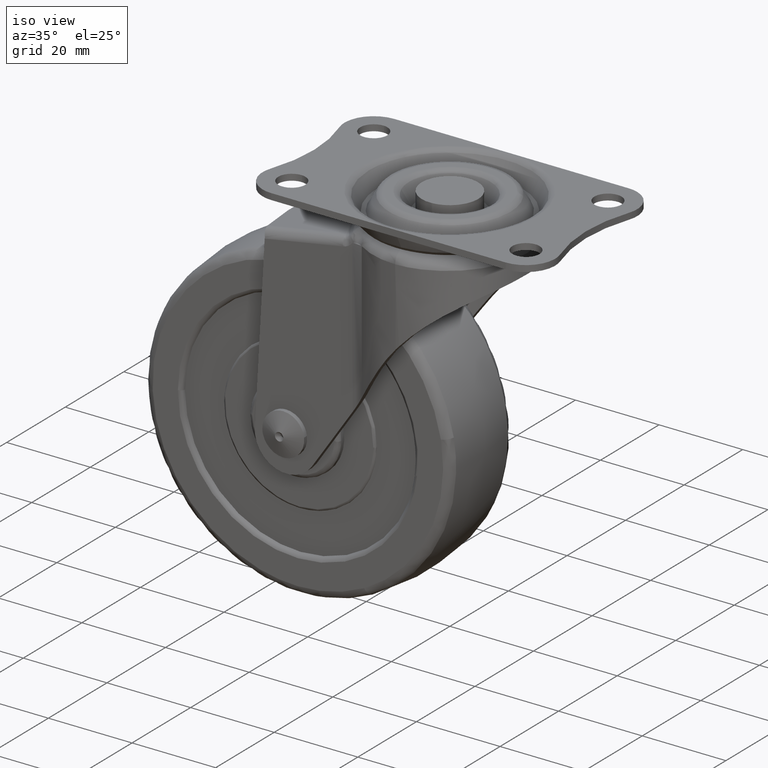
[diagram: clean part render]
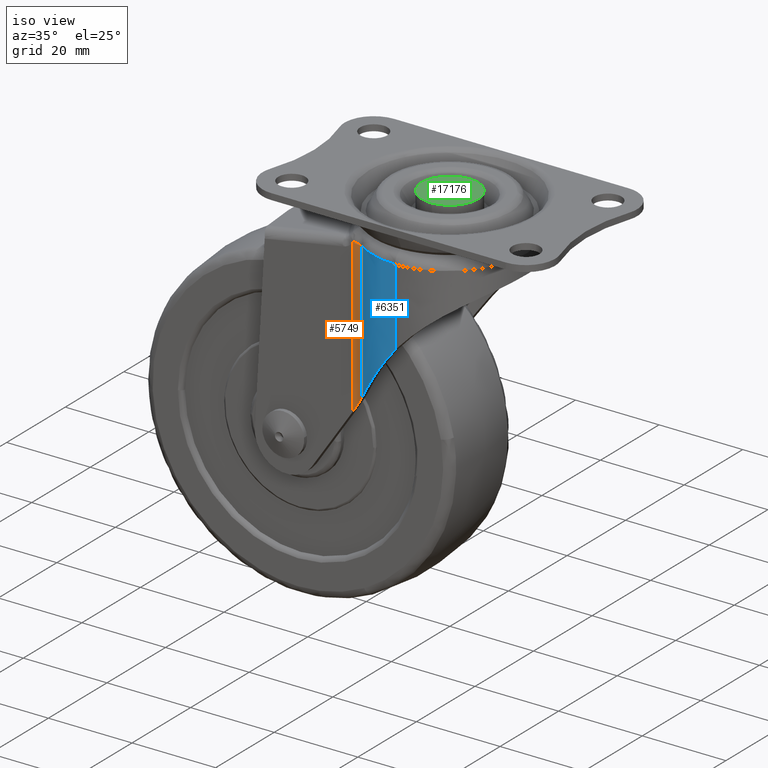
[diagram: same view with three faces highlighted in distinct colors, each labeled with its STEP entity id]
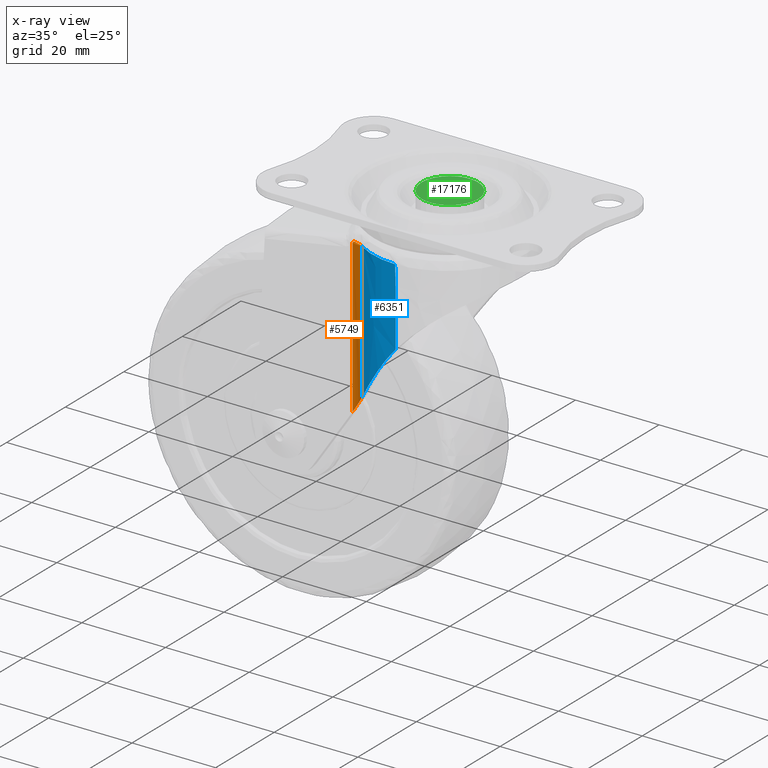
[diagram: x-ray of the same camera — body ghosted, the three highlighted faces saturated]
A machine part, iso view with three faces highlighted in distinct colors.
The next image is the same camera in x-ray (body ghosted, the three faces saturated) — at least one of them is partly hidden behind the body in this view.
Their STEP definitions:

[orange] entity #5749 — the highlighted face is a freeform B-spline surface patch.
#3965=CARTESIAN_POINT('',(-13.114845407450700,-14.500014999999960,-7.772795096158631));
#3966=VERTEX_POINT('',#3965);
#4020=CARTESIAN_POINT('',(-12.856621413632819,-14.506687415210759,-7.399998799999970));
#4021=VERTEX_POINT('',#4020);
#4045=CARTESIAN_POINT('',(-12.856621413632819,-14.506687415210759,-7.399998799999970));
#4046=CARTESIAN_POINT('',(-12.943936492150140,-14.502172019833150,-7.523364027690525));
#4047=CARTESIAN_POINT('',(-13.029958534654460,-14.500014999999919,-7.647667110686728));
#4048=CARTESIAN_POINT('',(-13.114845407450719,-14.500014999999919,-7.772795096158610));
#4049=QUASI_UNIFORM_CURVE('',3,(#4045,#4046,#4047,#4048),.UNSPECIFIED.,.F.,.U.);
#4050=EDGE_CURVE('',#4021,#3966,#4049,.T.);
#4654=CARTESIAN_POINT('',(-10.324452148758301,-15.351074718211850,-7.399998799999970));
#4655=VERTEX_POINT('',#4654);
#4656=CARTESIAN_POINT('',(-10.324452148758301,-15.351074718211841,-7.399998799999970));
#4657=CARTESIAN_POINT('',(-11.473600173807016,-14.578208712786072,-7.399998799999970));
#4658=CARTESIAN_POINT('',(-12.856621413632819,-14.506687415210751,-7.399998799999970));
#4666=(BOUNDED_CURVE()B_SPLINE_CURVE(2,(#4656,#4657,#4658),.UNSPECIFIED.,.F.,.U.)CURVE()GEOMETRIC_REPRESENTATION_ITEM()QUASI_UNIFORM_CURVE()RATIONAL_B_SPLINE_CURVE((1.0,0.963717432116673,1.0))REPRESENTATION_ITEM(''));
#4667=EDGE_CURVE('',#4655,#4021,#4666,.T.);
#5704=CARTESIAN_POINT('',(-13.252444837934910,-14.501908718944060,-45.218719079885069));
#5705=CARTESIAN_POINT('',(-13.252444837934910,-14.501908718944060,-6.454530793002839));
#5706=CARTESIAN_POINT('',(-11.571720338933032,-14.455637847366139,-45.218719079885062));
#5707=CARTESIAN_POINT('',(-11.571720338933032,-14.455637847366139,-6.454530793002838));
#5708=CARTESIAN_POINT('',(-10.204531691264046,-15.434295620434286,-45.218719079885069));
#5709=CARTESIAN_POINT('',(-10.204531691264046,-15.434295620434286,-6.454530793002840));
#5717=(BOUNDED_SURFACE()B_SPLINE_SURFACE(1,2,((#5704,#5706,#5708),(#5705,#5707,#5709)),.UNSPECIFIED.,.F.,.F.,.U.)B_SPLINE_SURFACE_WITH_KNOTS((2,2),(3,3),(0.0,38.764188286882231),(0.0,3.272668256991335),.UNSPECIFIED.)GEOMETRIC_REPRESENTATION_ITEM()RATIONAL_B_SPLINE_SURFACE(((1.0,0.944025096349124,0.991957538020021),(1.0,0.944025096349124,0.991957538020021)))REPRESENTATION_ITEM('')SURFACE());
#5718=ORIENTED_EDGE('',*,*,#4667,.T.);
#5719=ORIENTED_EDGE('',*,*,#4050,.T.);
#5720=CARTESIAN_POINT('',(-13.114845407450661,-14.500014999999960,-44.296311268180553));
#5721=VERTEX_POINT('',#5720);
#5722=CARTESIAN_POINT('',(-13.114845407450661,-14.500014999999960,-44.296311268180553));
#5723=CARTESIAN_POINT('',(-13.114845407450700,-14.500014999999960,-7.772795096158631));
#5724=QUASI_UNIFORM_CURVE('',1,(#5722,#5723),.UNSPECIFIED.,.F.,.U.);
#5725=EDGE_CURVE('',#5721,#3966,#5724,.T.);
#5726=ORIENTED_EDGE('',*,*,#5725,.F.);
#5727=CARTESIAN_POINT('',(-10.324452148758320,-15.351074718211850,-40.169434449829957));
#5728=VERTEX_POINT('',#5727);
#5729=CARTESIAN_POINT('',(-10.324452148758279,-15.351074718211850,-40.169434449829950));
#5730=CARTESIAN_POINT('',(-11.589863591166482,-14.500015093693394,-42.040925907560016));
#5731=CARTESIAN_POINT('',(-13.114845407450661,-14.500014999999960,-44.296311268180553));
#5739=(BOUNDED_CURVE()B_SPLINE_CURVE(2,(#5729,#5730,#5731),.UNSPECIFIED.,.F.,.U.)CURVE()GEOMETRIC_REPRESENTATION_ITEM()QUASI_UNIFORM_CURVE()RATIONAL_B_SPLINE_CURVE((1.0,0.956500938485019,1.0))REPRESENTATION_ITEM(''));
#5740=EDGE_CURVE('',#5728,#5721,#5739,.T.);
#5741=ORIENTED_EDGE('',*,*,#5740,.F.);
#5742=CARTESIAN_POINT('',(-10.324452148758301,-15.351074718211850,-7.399998799999970));
#5743=CARTESIAN_POINT('',(-10.324452148758320,-15.351074718211850,-40.169434449829957));
#5744=QUASI_UNIFORM_CURVE('',1,(#5742,#5743),.UNSPECIFIED.,.F.,.U.);
#5745=EDGE_CURVE('',#4655,#5728,#5744,.T.);
#5746=ORIENTED_EDGE('',*,*,#5745,.F.);
#5747=EDGE_LOOP('',(#5718,#5719,#5726,#5741,#5746));
#5748=FACE_OUTER_BOUND('',#5747,.T.);
#5749=ADVANCED_FACE('',(#5748),#5717,.F.);

[blue] entity #6351 — the highlighted face is a freeform B-spline surface patch.
#4654=CARTESIAN_POINT('',(-10.324452148758301,-15.351074718211850,-7.399998799999970));
#4655=VERTEX_POINT('',#4654);
#4754=CARTESIAN_POINT('',(-0.143163841083398,-18.499436752585250,-7.399998800000080));
#4755=VERTEX_POINT('',#4754);
#4756=CARTESIAN_POINT('',(-0.143163841083398,-18.499436752585250,-7.399998800000080));
#4757=CARTESIAN_POINT('',(-5.707278229099540,-18.456379106197605,-7.399998800000024));
#4758=CARTESIAN_POINT('',(-10.324452148758301,-15.351074718211850,-7.399998799999970));
#4766=(BOUNDED_CURVE()B_SPLINE_CURVE(2,(#4756,#4757,#4758),.UNSPECIFIED.,.F.,.U.)CURVE()GEOMETRIC_REPRESENTATION_ITEM()QUASI_UNIFORM_CURVE()RATIONAL_B_SPLINE_CURVE((1.0,0.957622564361793,1.0))REPRESENTATION_ITEM(''));
#4767=EDGE_CURVE('',#4755,#4655,#4766,.T.);
#5727=CARTESIAN_POINT('',(-10.324452148758320,-15.351074718211850,-40.169434449829957));
#5728=VERTEX_POINT('',#5727);
#5742=CARTESIAN_POINT('',(-10.324452148758301,-15.351074718211850,-7.399998799999970));
#5743=CARTESIAN_POINT('',(-10.324452148758320,-15.351074718211850,-40.169434449829957));
#5744=QUASI_UNIFORM_CURVE('',1,(#5742,#5743),.UNSPECIFIED.,.F.,.U.);
#5745=EDGE_CURVE('',#4655,#5728,#5744,.T.);
#5817=CARTESIAN_POINT('',(1.005923E-012,-18.499986619467698,-12.156786014966260));
#5818=VERTEX_POINT('',#5817);
#5819=CARTESIAN_POINT('',(1.005923E-012,-18.499986619467698,-12.156786014966260));
#5820=CARTESIAN_POINT('',(-0.071582992255914,-18.499988661767244,-9.778356798499587));
#5821=CARTESIAN_POINT('',(-0.143163841083398,-18.499436752585250,-7.399998800000080));
#5829=(BOUNDED_CURVE()B_SPLINE_CURVE(2,(#5819,#5820,#5821),.UNSPECIFIED.,.F.,.U.)CURVE()GEOMETRIC_REPRESENTATION_ITEM()QUASI_UNIFORM_CURVE()RATIONAL_B_SPLINE_CURVE((1.0,0.999992514114235,1.0))REPRESENTATION_ITEM(''));
#5830=EDGE_CURVE('',#5818,#4755,#5829,.T.);
#6165=CARTESIAN_POINT('',(9.922618E-013,-18.499994788543699,-25.766931479263551));
#6166=VERTEX_POINT('',#6165);
#6180=CARTESIAN_POINT('',(-4.681181119284840,-17.897942633291049,-31.823268790685901));
#6181=VERTEX_POINT('',#6180);
#6182=CARTESIAN_POINT('',(-4.681181119284840,-17.897942633291049,-31.823268790685901));
#6183=CARTESIAN_POINT('',(-3.969290812042974,-18.084136517892521,-30.769616840080261));
#6184=CARTESIAN_POINT('',(-3.223789831007494,-18.233922761845360,-29.738324666694020));
#6185=CARTESIAN_POINT('',(-1.664108946531599,-18.441786832449999,-27.719708350576319));
#6186=CARTESIAN_POINT('',(-0.849940992225231,-18.499994788543699,-26.732387907878220));
#6187=CARTESIAN_POINT('',(9.989211E-013,-18.499994788543699,-25.766931479263551));
#6188=B_SPLINE_CURVE_WITH_KNOTS('',3,(#6182,#6183,#6184,#6185,#6186,#6187),.UNSPECIFIED.,.F.,.U.,(4,2,4),(0.0,0.500000000000000,1.0),.UNSPECIFIED.);
#6189=EDGE_CURVE('',#6181,#6166,#6188,.T.);
#6313=CARTESIAN_POINT('',(0.484273407276650,-18.493655302377341,-40.988670341075711));
#6314=CARTESIAN_POINT('',(0.484273407276650,-18.493655302377341,-6.560282011473078));
#6315=CARTESIAN_POINT('',(-5.720051051796170,-18.656121256052419,-40.988670341075711));
#6316=CARTESIAN_POINT('',(-5.720051051796170,-18.656121256052419,-6.560282011473078));
#6317=CARTESIAN_POINT('',(-10.767053929602486,-15.043947515634120,-40.988670341075711));
#6318=CARTESIAN_POINT('',(-10.767053929602486,-15.043947515634120,-6.560282011473078));
#6326=(BOUNDED_SURFACE()B_SPLINE_SURFACE(1,2,((#6313,#6315,#6317),(#6314,#6316,#6318)),.UNSPECIFIED.,.F.,.F.,.U.)B_SPLINE_SURFACE_WITH_KNOTS((2,2),(3,3),(0.0,34.428388329602633),(0.0,12.082003652498919),.UNSPECIFIED.)GEOMETRIC_REPRESENTATION_ITEM()RATIONAL_B_SPLINE_SURFACE(((1.0,0.946843488068517,0.997414615118752),(1.0,0.946843488068517,0.997414615118752)))REPRESENTATION_ITEM('')SURFACE());
#6327=ORIENTED_EDGE('',*,*,#5830,.T.);
#6328=ORIENTED_EDGE('',*,*,#4767,.T.);
#6329=ORIENTED_EDGE('',*,*,#5745,.T.);
#6330=CARTESIAN_POINT('',(-10.324452148758320,-15.351074718211850,-40.169434449829950));
#6331=CARTESIAN_POINT('',(-7.718953336185503,-17.103417684932214,-36.316008909773160));
#6332=CARTESIAN_POINT('',(-4.681181119284840,-17.897942633291049,-31.823268790685901));
#6340=(BOUNDED_CURVE()B_SPLINE_CURVE(2,(#6330,#6331,#6332),.UNSPECIFIED.,.F.,.U.)CURVE()GEOMETRIC_REPRESENTATION_ITEM()QUASI_UNIFORM_CURVE()RATIONAL_B_SPLINE_CURVE((1.0,0.985900208722441,1.0))REPRESENTATION_ITEM(''));
#6341=EDGE_CURVE('',#5728,#6181,#6340,.T.);
#6342=ORIENTED_EDGE('',*,*,#6341,.T.);
#6343=ORIENTED_EDGE('',*,*,#6189,.T.);
#6344=CARTESIAN_POINT('',(9.922618E-013,-18.499994788543699,-25.766931479263551));
#6345=CARTESIAN_POINT('',(1.005923E-012,-18.499986619467698,-12.156786014966260));
#6346=QUASI_UNIFORM_CURVE('',1,(#6344,#6345),.UNSPECIFIED.,.F.,.U.);
#6347=EDGE_CURVE('',#6166,#5818,#6346,.T.);
#6348=ORIENTED_EDGE('',*,*,#6347,.T.);
#6349=EDGE_LOOP('',(#6327,#6328,#6329,#6342,#6343,#6348));
#6350=FACE_OUTER_BOUND('',#6349,.T.);
#6351=ADVANCED_FACE('',(#6350),#6326,.T.);

[green] entity #17176 — the highlighted face is a freeform B-spline surface patch.
#16321=CARTESIAN_POINT('',(-0.796719494586398,6.702815680503946,1.499999999999786));
#16322=VERTEX_POINT('',#16321);
#16323=CARTESIAN_POINT('',(6.750000000000000,-1.421085E-014,1.500000000000000));
#16324=VERTEX_POINT('',#16323);
#16325=CARTESIAN_POINT('',(-0.796719494586398,6.702815680503946,1.499999999999786));
#16326=CARTESIAN_POINT('',(-0.399756951717988,6.749999999999986,1.500000000000000));
#16327=CARTESIAN_POINT('',(0.0,6.749999999999986,1.500000000000000));
#16328=CARTESIAN_POINT('',(6.750000000000000,6.749999999999986,1.500000000000000));
#16329=CARTESIAN_POINT('',(6.750000000000000,-1.421085E-014,1.500000000000000));
#16337=(BOUNDED_CURVE()B_SPLINE_CURVE(2,(#16325,#16326,#16327,#16328,#16329),.UNSPECIFIED.,.F.,.U.)B_SPLINE_CURVE_WITH_KNOTS((3,2,3),(0.229562765726850,0.250000000000000,0.500000000000000),.UNSPECIFIED.)CURVE()GEOMETRIC_REPRESENTATION_ITEM()RATIONAL_B_SPLINE_CURVE((0.956027326934607,0.976056290680370,1.0,0.707106781186548,1.0))REPRESENTATION_ITEM(''));
#16338=EDGE_CURVE('',#16322,#16324,#16337,.T.);
#16340=CARTESIAN_POINT('',(0.412077641956885,-6.737409889341707,1.500000000000000));
#16341=VERTEX_POINT('',#16340);
#16342=CARTESIAN_POINT('',(6.750000000000000,-1.421085E-014,1.500000000000000));
#16343=CARTESIAN_POINT('',(6.750000000000001,-6.349765951431015,1.500000000000000));
#16344=CARTESIAN_POINT('',(0.412077641956885,-6.737409889341708,1.500000000000000));
#16352=(BOUNDED_CURVE()B_SPLINE_CURVE(2,(#16342,#16343,#16344),.UNSPECIFIED.,.F.,.U.)B_SPLINE_CURVE_WITH_KNOTS((3,3),(0.500000000000000,0.739332962237020),.UNSPECIFIED.)CURVE()GEOMETRIC_REPRESENTATION_ITEM()RATIONAL_B_SPLINE_CURVE((1.0,0.719603993288963,0.976072041662597))REPRESENTATION_ITEM(''));
#16353=EDGE_CURVE('',#16324,#16341,#16352,.T.);
#16424=CARTESIAN_POINT('',(-6.750000000000000,-1.421085E-014,1.500000000000000));
#16425=VERTEX_POINT('',#16424);
#16426=CARTESIAN_POINT('',(-6.750000000000000,-1.421085E-014,1.500000000000000));
#16427=CARTESIAN_POINT('',(-6.749999999999999,5.995188488974273,1.500000000000000));
#16428=CARTESIAN_POINT('',(-0.796719494586398,6.702815680503946,1.499999999999786));
#16436=(BOUNDED_CURVE()B_SPLINE_CURVE(2,(#16426,#16427,#16428),.UNSPECIFIED.,.F.,.U.)B_SPLINE_CURVE_WITH_KNOTS((3,3),(0.0,0.229562765726850),.UNSPECIFIED.)CURVE()GEOMETRIC_REPRESENTATION_ITEM()RATIONAL_B_SPLINE_CURVE((1.0,0.731050490506178,0.956027326934607))REPRESENTATION_ITEM(''));
#16437=EDGE_CURVE('',#16425,#16322,#16436,.T.);
#16471=CARTESIAN_POINT('',(0.412077641956885,-6.737409889341707,1.500000000000001));
#16472=CARTESIAN_POINT('',(0.206231152362346,-6.750000000000014,1.500000000000000));
#16473=CARTESIAN_POINT('',(0.0,-6.750000000000014,1.500000000000000));
#16474=CARTESIAN_POINT('',(-6.750000000000000,-6.750000000000014,1.500000000000000));
#16475=CARTESIAN_POINT('',(-6.750000000000000,-1.421085E-014,1.500000000000000));
#16483=(BOUNDED_CURVE()B_SPLINE_CURVE(2,(#16471,#16472,#16473,#16474,#16475),.UNSPECIFIED.,.F.,.U.)B_SPLINE_CURVE_WITH_KNOTS((3,2,3),(0.739332962237020,0.750000000000000,1.0),.UNSPECIFIED.)CURVE()GEOMETRIC_REPRESENTATION_ITEM()RATIONAL_B_SPLINE_CURVE((0.976072041662597,0.987502787897585,1.0,0.707106781186548,1.0))REPRESENTATION_ITEM(''));
#16484=EDGE_CURVE('',#16341,#16425,#16483,.T.);
#17165=CARTESIAN_POINT('',(-7.424324973834381,-7.424160811562288,1.500000000000000));
#17166=CARTESIAN_POINT('',(7.424325335932597,-7.424160811562288,1.500000000000000));
#17167=CARTESIAN_POINT('',(-7.424324973834381,7.424202211458406,1.500000000000000));
#17168=CARTESIAN_POINT('',(7.424325335932597,7.424202211458406,1.500000000000000));
#17169=B_SPLINE_SURFACE_WITH_KNOTS('',1,1,((#17165,#17167),(#17166,#17168)),.UNSPECIFIED.,.F.,.F.,.U.,(2,2),(2,2),(0.0,14.848650309766979),(0.0,14.848363023020690),.UNSPECIFIED.);
#17170=ORIENTED_EDGE('',*,*,#16484,.F.);
#17171=ORIENTED_EDGE('',*,*,#16353,.F.);
#17172=ORIENTED_EDGE('',*,*,#16338,.F.);
#17173=ORIENTED_EDGE('',*,*,#16437,.F.);
#17174=EDGE_LOOP('',(#17170,#17171,#17172,#17173));
#17175=FACE_OUTER_BOUND('',#17174,.T.);
#17176=ADVANCED_FACE('',(#17175),#17169,.T.);